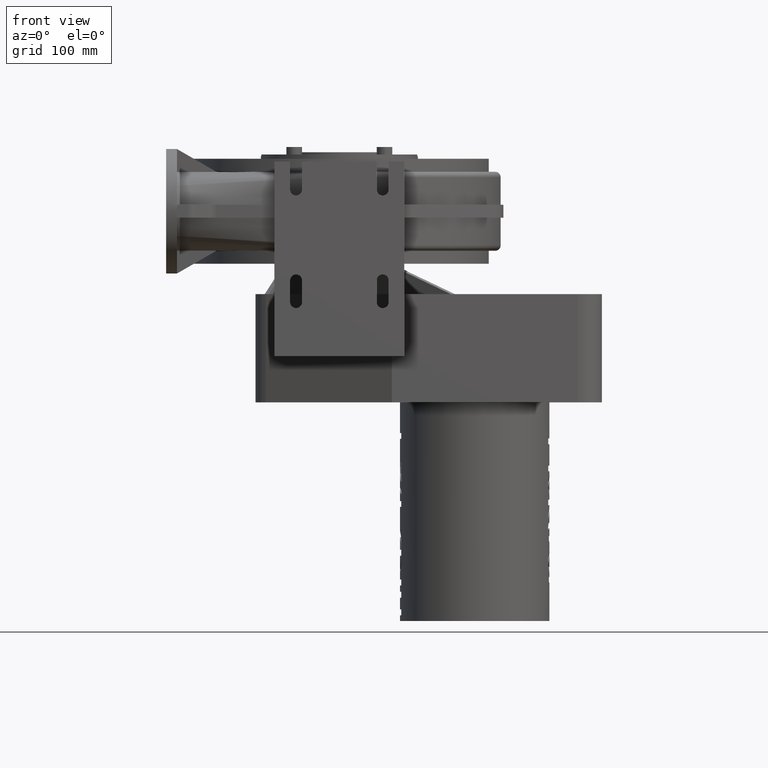
[diagram: clean part render]
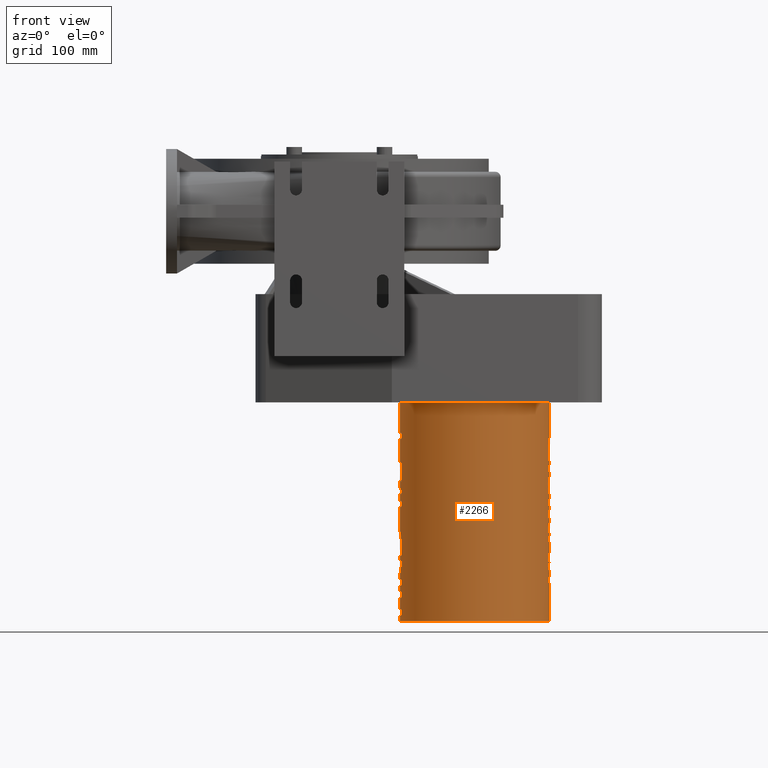
[diagram: same view with one face highlighted and labeled with its STEP entity id]
A machine part, front view. The second image highlights one B-rep face of the part: STEP entity #2266.
In plain terms, the highlighted cylindrical surface (partial cylindrical patch) has radius 69 mm, axis along (0, 0, -1).
Its self-contained STEP definition (entity closure, byte-faithful):
#1272=CARTESIAN_POINT('',(125.0,7.789082E-029,-176.500000000000000));
#1273=DIRECTION('',(0.0,7.810504E-031,-1.0));
#1274=DIRECTION('',(1.0,0.0,0.0));
#1275=AXIS2_PLACEMENT_3D('',#1272,#1273,#1274);
#1276=CYLINDRICAL_SURFACE('',#1275,69.0);
#1277=CARTESIAN_POINT('',(194.0,8.449784E-015,-176.500000000000000));
#1278=VERTEX_POINT('',#1277);
#1279=CARTESIAN_POINT('',(194.0,8.449784E-015,-209.729818759031560));
#1280=VERTEX_POINT('',#1279);
#1281=CARTESIAN_POINT('',(194.0,8.449784E-015,-176.500000000000000));
#1282=DIRECTION('',(0.0,0.0,-1.0));
#1283=VECTOR('',#1282,33.229818759031559);
#1284=LINE('',#1281,#1283);
#1285=EDGE_CURVE('',#1278,#1280,#1284,.T.);
#1286=ORIENTED_EDGE('',*,*,#1285,.F.);
#1287=CARTESIAN_POINT('',(56.0,8.449784E-015,-176.500000000000000));
#1288=VERTEX_POINT('',#1287);
#1289=CARTESIAN_POINT('',(125.0,7.789082E-029,-176.500000000000000));
#1290=DIRECTION('',(0.0,0.0,1.0));
#1291=DIRECTION('',(1.0,0.0,0.0));
#1292=AXIS2_PLACEMENT_3D('',#1289,#1290,#1291);
#1293=CIRCLE('',#1292,69.0);
#1294=EDGE_CURVE('',#1288,#1278,#1293,.T.);
#1295=ORIENTED_EDGE('',*,*,#1294,.F.);
#1296=CARTESIAN_POINT('',(56.0,-8.449784E-015,-204.775050201222260));
#1297=VERTEX_POINT('',#1296);
#1298=CARTESIAN_POINT('',(56.0,-8.449784E-015,-204.775050201222260));
#1299=DIRECTION('',(0.0,0.0,1.0));
#1300=VECTOR('',#1299,28.275050201222257);
#1301=LINE('',#1298,#1300);
#1302=EDGE_CURVE('',#1297,#1288,#1301,.T.);
#1303=ORIENTED_EDGE('',*,*,#1302,.F.);
#1304=CARTESIAN_POINT('',(57.189682534296850,-12.757775872014463,-204.775050201222230));
#1305=VERTEX_POINT('',#1304);
#1306=CARTESIAN_POINT('',(125.0,9.997506E-029,-204.775050201222230));
#1307=DIRECTION('',(0.0,0.0,1.0));
#1308=DIRECTION('',(1.0,0.0,0.0));
#1309=AXIS2_PLACEMENT_3D('',#1306,#1307,#1308);
#1310=CIRCLE('',#1309,69.0);
#1311=EDGE_CURVE('',#1297,#1305,#1310,.T.);
#1312=ORIENTED_EDGE('',*,*,#1311,.T.);
#1313=CARTESIAN_POINT('',(57.189682534296850,-12.757775872014463,-210.289150849503270));
#1314=VERTEX_POINT('',#1313);
#1315=CARTESIAN_POINT('',(57.189682534296850,-12.757775872014463,-204.775050201222230));
#1316=DIRECTION('',(0.0,0.0,-1.0));
#1317=VECTOR('',#1316,5.514100648281044);
#1318=LINE('',#1315,#1317);
#1319=EDGE_CURVE('',#1305,#1314,#1318,.T.);
#1320=ORIENTED_EDGE('',*,*,#1319,.T.);
#1321=CARTESIAN_POINT('',(56.0,-8.449784E-015,-210.289150849503240));
#1322=VERTEX_POINT('',#1321);
#1323=CARTESIAN_POINT('',(125.0,1.042819E-028,-210.289150849503270));
#1324=DIRECTION('',(0.0,0.0,-1.0));
#1325=DIRECTION('',(1.0,0.0,0.0));
#1326=AXIS2_PLACEMENT_3D('',#1323,#1324,#1325);
#1327=CIRCLE('',#1326,69.0);
#1328=EDGE_CURVE('',#1314,#1322,#1327,.T.);
#1329=ORIENTED_EDGE('',*,*,#1328,.T.);
#1330=CARTESIAN_POINT('',(55.999999999999943,-1.964088E-012,-234.516596737589420));
#1331=VERTEX_POINT('',#1330);
#1332=CARTESIAN_POINT('',(55.999999999999943,-1.964088E-012,-234.516596737589420));
#1333=DIRECTION('',(0.0,0.0,1.0));
#1334=VECTOR('',#1333,24.227445888086180);
#1335=LINE('',#1332,#1334);
#1336=EDGE_CURVE('',#1331,#1322,#1335,.T.);
#1337=ORIENTED_EDGE('',*,*,#1336,.F.);
#1338=CARTESIAN_POINT('',(56.452439273041328,-7.888720959947423,-242.104471193736170));
#1339=VERTEX_POINT('',#1338);
#1340=CARTESIAN_POINT('',(55.999999999999943,-1.964088E-012,-234.516596737589420));
#1341=CARTESIAN_POINT('',(55.999999999999957,-0.388288890931109,-234.838361301379050));
#1342=CARTESIAN_POINT('',(56.007156899123061,-1.052312633657454,-235.501855051595500));
#1343=CARTESIAN_POINT('',(56.028136739089803,-2.087358634415591,-236.538959868762560));
#1344=CARTESIAN_POINT('',(56.052822724750527,-2.804268010919069,-237.276655904869190));
#1345=CARTESIAN_POINT('',(56.188844136347242,-5.434923488413775,-239.965103715801380));
#1346=CARTESIAN_POINT('',(56.356744716586206,-7.057201065511895,-241.639798311551630));
#1347=CARTESIAN_POINT('',(56.452439273041328,-7.888720959947424,-242.104471193736170));
#1348=B_SPLINE_CURVE_WITH_KNOTS('',3,(#1340,#1341,#1342,#1343,#1344,#1345,#1346,#1347),.UNSPECIFIED.,.F.,.U.,(4,2,2,4),(0.007320652889448,0.144058107697565,0.416372723331911,1.088252867130318),.UNSPECIFIED.);
#1349=EDGE_CURVE('',#1331,#1339,#1348,.T.);
#1350=ORIENTED_EDGE('',*,*,#1349,.T.);
#1351=CARTESIAN_POINT('',(56.452439273041328,-7.888720959947424,-231.721315633388090));
#1352=VERTEX_POINT('',#1351);
#1353=CARTESIAN_POINT('',(56.452439273041328,-7.888720959947423,-242.104471193736170));
#1354=DIRECTION('',(0.0,0.0,1.0));
#1355=VECTOR('',#1354,10.383155560348087);
#1356=LINE('',#1353,#1355);
#1357=EDGE_CURVE('',#1339,#1352,#1356,.T.);
#1358=ORIENTED_EDGE('',*,*,#1357,.T.);
#1359=CARTESIAN_POINT('',(57.189682534296850,-12.757775872014463,-231.721315633388090));
#1360=VERTEX_POINT('',#1359);
#1361=CARTESIAN_POINT('',(125.0,1.210215E-028,-231.721315633388090));
#1362=DIRECTION('',(0.0,0.0,1.0));
#1363=DIRECTION('',(1.0,0.0,0.0));
#1364=AXIS2_PLACEMENT_3D('',#1361,#1362,#1363);
#1365=CIRCLE('',#1364,69.0);
#1366=EDGE_CURVE('',#1352,#1360,#1365,.T.);
#1367=ORIENTED_EDGE('',*,*,#1366,.T.);
#1368=CARTESIAN_POINT('',(57.189682534296850,-12.757775872014463,-250.053099298050770));
#1369=VERTEX_POINT('',#1368);
#1370=CARTESIAN_POINT('',(57.189682534296850,-12.757775872014463,-231.721315633388090));
#1371=DIRECTION('',(0.0,0.0,-1.0));
#1372=VECTOR('',#1371,18.331783664662680);
#1373=LINE('',#1370,#1372);
#1374=EDGE_CURVE('',#1360,#1369,#1373,.T.);
#1375=ORIENTED_EDGE('',*,*,#1374,.T.);
#1376=CARTESIAN_POINT('',(56.007265570534379,-1.001297131339776,-242.374974244406620));
#1377=VERTEX_POINT('',#1376);
#1378=CARTESIAN_POINT('',(57.189682534296850,-12.757775872014463,-250.053099298050770));
#1379=CARTESIAN_POINT('',(57.074573516836452,-12.145946733812041,-249.988208328847460));
#1380=CARTESIAN_POINT('',(56.947594826559879,-11.424911343210059,-249.790373530112390));
#1381=CARTESIAN_POINT('',(56.609508529466702,-9.255135871047388,-248.922447325269080));
#1382=CARTESIAN_POINT('',(56.404172537012975,-7.647305439453977,-248.015505662462490));
#1383=CARTESIAN_POINT('',(56.104365499779682,-4.189284222809676,-245.505963388457760));
#1384=CARTESIAN_POINT('',(56.028998201659149,-2.498748388029204,-243.994666420009450));
#1385=CARTESIAN_POINT('',(56.007265570534379,-1.001297131339776,-242.374974244406590));
#1386=B_SPLINE_CURVE_WITH_KNOTS('',3,(#1378,#1379,#1380,#1381,#1382,#1383,#1384,#1385),.UNSPECIFIED.,.F.,.U.,(4,2,2,4),(0.0,0.187780786110965,0.508175730232061,0.844360333498161),.UNSPECIFIED.);
#1387=EDGE_CURVE('',#1369,#1377,#1386,.T.);
#1388=ORIENTED_EDGE('',*,*,#1387,.T.);
#1389=CARTESIAN_POINT('',(56.0,3.936754E-010,-241.310136639798770));
#1390=VERTEX_POINT('',#1389);
#1391=CARTESIAN_POINT('',(56.007265570534379,-1.001297131339776,-242.374974244406590));
#1392=CARTESIAN_POINT('',(56.002553359331870,-0.676609957178868,-242.025627284866350));
#1393=CARTESIAN_POINT('',(55.999999999998060,-0.340148046746626,-241.667135176022040));
#1394=CARTESIAN_POINT('',(56.0,3.936754E-010,-241.310136639798770));
#1395=B_SPLINE_CURVE_WITH_KNOTS('',3,(#1391,#1392,#1393,#1394),.UNSPECIFIED.,.F.,.U.,(4,4),(0.0,0.143086874913496),.UNSPECIFIED.);
#1396=EDGE_CURVE('',#1377,#1390,#1395,.T.);
#1397=ORIENTED_EDGE('',*,*,#1396,.T.);
#1398=CARTESIAN_POINT('',(56.000000000000014,-1.538158E-014,-254.608028303446620));
#1399=VERTEX_POINT('',#1398);
#1400=CARTESIAN_POINT('',(56.000000000000014,-1.538158E-014,-254.608028303446620));
#1401=DIRECTION('',(-1.068655E-015,2.960550E-011,1.0));
#1402=VECTOR('',#1401,13.297891663647846);
#1403=LINE('',#1400,#1402);
#1404=EDGE_CURVE('',#1399,#1390,#1403,.T.);
#1405=ORIENTED_EDGE('',*,*,#1404,.F.);
#1406=CARTESIAN_POINT('',(57.277409742529869,-13.215550265456670,-257.814456059593510));
#1407=VERTEX_POINT('',#1406);
#1408=CARTESIAN_POINT('',(125.0,1.388971E-028,-254.608028303446620));
#1409=DIRECTION('',(1.000738E-016,-0.235784627761744,0.971805335090961));
#1410=DIRECTION('',(-9.787630E-065,-0.971805335090961,-0.235784627761744));
#1411=AXIS2_PLACEMENT_3D('',#1408,#1409,#1410);
#1412=ELLIPSE('',#1411,71.001874046659310,68.999999999999986);
#1413=EDGE_CURVE('',#1399,#1407,#1412,.T.);
#1414=ORIENTED_EDGE('',*,*,#1413,.T.);
#1415=CARTESIAN_POINT('',(57.277409742529869,-13.215550265456670,-261.684730476877580));
#1416=VERTEX_POINT('',#1415);
#1417=CARTESIAN_POINT('',(57.277409742529869,-13.215550265456670,-257.814456059593510));
#1418=DIRECTION('',(0.0,0.0,-1.0));
#1419=VECTOR('',#1418,3.870274417284065);
#1420=LINE('',#1417,#1419);
#1421=EDGE_CURVE('',#1407,#1416,#1420,.T.);
#1422=ORIENTED_EDGE('',*,*,#1421,.T.);
#1423=CARTESIAN_POINT('',(56.0,-2.136891E-014,-258.507540663795850));
#1424=VERTEX_POINT('',#1423);
#1425=CARTESIAN_POINT('',(125.0,1.419428E-028,-258.507540663795850));
#1426=DIRECTION('',(-1.001243E-016,0.233752603951944,-0.972296107235695));
#1427=DIRECTION('',(-9.792573E-065,-0.972296107235695,-0.233752603951944));
#1428=AXIS2_PLACEMENT_3D('',#1425,#1426,#1427);
#1429=ELLIPSE('',#1428,70.966035435616192,69.0);
#1430=EDGE_CURVE('',#1416,#1424,#1429,.T.);
#1431=ORIENTED_EDGE('',*,*,#1430,.T.);
#1432=CARTESIAN_POINT('',(56.0,-8.449784E-015,-267.781453080448730));
#1433=VERTEX_POINT('',#1432);
#1434=CARTESIAN_POINT('',(56.0,-8.449784E-015,-267.781453080448730));
#1435=DIRECTION('',(0.0,0.0,1.0));
#1436=VECTOR('',#1435,9.273912416652877);
#1437=LINE('',#1434,#1436);
#1438=EDGE_CURVE('',#1433,#1424,#1437,.T.);
#1439=ORIENTED_EDGE('',*,*,#1438,.F.);
#1440=CARTESIAN_POINT('',(57.189682534296850,-12.757775872014463,-267.781453080448730));
#1441=VERTEX_POINT('',#1440);
#1442=CARTESIAN_POINT('',(125.0,1.491862E-028,-267.781453080448730));
#1443=DIRECTION('',(0.0,0.0,1.0));
#1444=DIRECTION('',(1.0,0.0,0.0));
#1445=AXIS2_PLACEMENT_3D('',#1442,#1443,#1444);
#1446=CIRCLE('',#1445,69.0);
#1447=EDGE_CURVE('',#1433,#1441,#1446,.T.);
#1448=ORIENTED_EDGE('',*,*,#1447,.T.);
#1449=CARTESIAN_POINT('',(57.189682534296850,-12.757775872014463,-273.025050678059420));
#1450=VERTEX_POINT('',#1449);
#1451=CARTESIAN_POINT('',(57.189682534296850,-12.757775872014463,-267.781453080448730));
#1452=DIRECTION('',(0.0,0.0,-1.0));
#1453=VECTOR('',#1452,5.243597597610687);
#1454=LINE('',#1451,#1453);
#1455=EDGE_CURVE('',#1441,#1450,#1454,.T.);
#1456=ORIENTED_EDGE('',*,*,#1455,.T.);
#1457=CARTESIAN_POINT('',(56.0,-8.449784E-015,-273.025050678059420));
#1458=VERTEX_POINT('',#1457);
#1459=CARTESIAN_POINT('',(125.0,1.532818E-028,-273.025050678059420));
#1460=DIRECTION('',(0.0,0.0,-1.0));
#1461=DIRECTION('',(1.0,0.0,0.0));
#1462=AXIS2_PLACEMENT_3D('',#1459,#1460,#1461);
#1463=CIRCLE('',#1462,69.0);
#1464=EDGE_CURVE('',#1450,#1458,#1463,.T.);
#1465=ORIENTED_EDGE('',*,*,#1464,.T.);
#1466=CARTESIAN_POINT('',(56.0,-8.166184E-015,-295.296798243221820));
#1467=VERTEX_POINT('',#1466);
#1468=CARTESIAN_POINT('',(56.0,-8.166184E-015,-295.296798243221820));
#1469=DIRECTION('',(0.0,0.0,1.0));
#1470=VECTOR('',#1469,22.271747565162400);
#1471=LINE('',#1468,#1470);
#1472=EDGE_CURVE('',#1467,#1458,#1471,.T.);
#1473=ORIENTED_EDGE('',*,*,#1472,.F.);
#1474=CARTESIAN_POINT('',(56.194990347468504,-5.183690453243504,-296.121849619915850));
#1475=VERTEX_POINT('',#1474);
#1476=CARTESIAN_POINT('',(56.0,-8.166184E-015,-295.296798243221820));
#1477=CARTESIAN_POINT('',(56.0,-0.841441595791575,-295.316727153522150));
#1478=CARTESIAN_POINT('',(56.015606979618177,-1.685841296721468,-295.378725431096370));
#1479=CARTESIAN_POINT('',(56.078855832537968,-3.419894112292160,-295.627335146427750));
#1480=CARTESIAN_POINT('',(56.129974676221785,-4.320713790565493,-295.826814863444720));
#1481=CARTESIAN_POINT('',(56.194990347468504,-5.183690453243504,-296.121849619915850));
#1482=B_SPLINE_CURVE_WITH_KNOTS('',3,(#1476,#1477,#1478,#1479,#1480,#1481),.UNSPECIFIED.,.F.,.U.,(4,2,4),(0.062066374970631,0.313741228126287,0.588357270375753),.UNSPECIFIED.);
#1483=EDGE_CURVE('',#1467,#1475,#1482,.T.);
#1484=ORIENTED_EDGE('',*,*,#1483,.T.);
#1485=CARTESIAN_POINT('',(56.730114355546547,-10.011129511361254,-299.055767323340890));
#1486=VERTEX_POINT('',#1485);
#1487=CARTESIAN_POINT('',(56.194990347468504,-5.183690453243504,-296.121849619915850));
#1488=CARTESIAN_POINT('',(56.265676871154405,-6.121938403884418,-296.449908343916150));
#1489=CARTESIAN_POINT('',(56.353874215139655,-7.031118832815270,-296.860635756204030));
#1490=CARTESIAN_POINT('',(56.540739588572507,-8.657024067409601,-297.848792674361850));
#1491=CARTESIAN_POINT('',(56.636726474416477,-9.374280296885328,-298.404606890562090));
#1492=CARTESIAN_POINT('',(56.730114355546547,-10.011129511361254,-299.055767323340890));
#1493=B_SPLINE_CURVE_WITH_KNOTS('',3,(#1487,#1488,#1489,#1490,#1491,#1492),.UNSPECIFIED.,.F.,.U.,(4,2,4),(0.0,0.298937367205047,0.573710543804962),.UNSPECIFIED.);
#1494=EDGE_CURVE('',#1475,#1486,#1493,.T.);
#1495=ORIENTED_EDGE('',*,*,#1494,.T.);
#1496=CARTESIAN_POINT('',(57.082655918358597,-12.175153916724391,-302.926041740624950));
#1497=VERTEX_POINT('',#1496);
#1498=CARTESIAN_POINT('',(56.730114355546547,-10.011129511361254,-299.055767323340890));
#1499=CARTESIAN_POINT('',(56.801638404794197,-10.498880534602357,-299.558078078619020));
#1500=CARTESIAN_POINT('',(56.866591028890582,-10.906832619568913,-300.128896875500630));
#1501=CARTESIAN_POINT('',(56.986841908051474,-11.634555434950347,-301.430400195352950));
#1502=CARTESIAN_POINT('',(57.039905718762121,-11.936678080163166,-302.171942473661030));
#1503=CARTESIAN_POINT('',(57.082655918358597,-12.175153916724391,-302.926041740624950));
#1504=B_SPLINE_CURVE_WITH_KNOTS('',3,(#1498,#1499,#1500,#1501,#1502,#1503),.UNSPECIFIED.,.F.,.U.,(4,2,4),(0.0,0.211139660093850,0.448790624096161),.UNSPECIFIED.);
#1505=EDGE_CURVE('',#1486,#1497,#1504,.T.);
#1506=ORIENTED_EDGE('',*,*,#1505,.T.);
#1507=CARTESIAN_POINT('',(57.189682534296850,-12.757775872014463,-307.815904579666610));
#1508=VERTEX_POINT('',#1507);
#1509=CARTESIAN_POINT('',(57.082655918358597,-12.175153916724391,-302.926041740624950));
#1510=CARTESIAN_POINT('',(57.121611546637148,-12.392462283239292,-303.609010892528890));
#1511=CARTESIAN_POINT('',(57.146676144105832,-12.527325349758074,-304.352383894549860));
#1512=CARTESIAN_POINT('',(57.182390193369969,-12.719422623613468,-305.964628284091530));
#1513=CARTESIAN_POINT('',(57.189682534296850,-12.757775872014463,-306.909542024400880));
#1514=CARTESIAN_POINT('',(57.189682534296850,-12.757775872014463,-307.815904579666610));
#1515=B_SPLINE_CURVE_WITH_KNOTS('',3,(#1509,#1510,#1511,#1512,#1513,#1514),.UNSPECIFIED.,.F.,.U.,(4,2,4),(0.0,0.215329653467874,0.487814900528465),.UNSPECIFIED.);
#1516=EDGE_CURVE('',#1497,#1508,#1515,.T.);
#1517=ORIENTED_EDGE('',*,*,#1516,.T.);
#1518=CARTESIAN_POINT('',(57.189682534296850,-12.757775872014463,-318.199060140014750));
#1519=VERTEX_POINT('',#1518);
#1520=CARTESIAN_POINT('',(57.189682534296850,-12.757775872014463,-307.815904579666610));
#1521=DIRECTION('',(0.0,0.0,-1.0));
#1522=VECTOR('',#1521,10.383155560348143);
#1523=LINE('',#1520,#1522);
#1524=EDGE_CURVE('',#1508,#1519,#1523,.T.);
#1525=ORIENTED_EDGE('',*,*,#1524,.T.);
#1526=CARTESIAN_POINT('',(56.0,-8.449784E-015,-318.199060140014690));
#1527=VERTEX_POINT('',#1526);
#1528=CARTESIAN_POINT('',(125.0,1.885649E-028,-318.199060140014690));
#1529=DIRECTION('',(0.0,0.0,-1.0));
#1530=DIRECTION('',(1.0,0.0,0.0));
#1531=AXIS2_PLACEMENT_3D('',#1528,#1529,#1530);
#1532=CIRCLE('',#1531,69.0);
#1533=EDGE_CURVE('',#1519,#1527,#1532,.T.);
#1534=ORIENTED_EDGE('',*,*,#1533,.T.);
#1535=CARTESIAN_POINT('',(56.0,2.877470E-012,-328.400225835131550));
#1536=VERTEX_POINT('',#1535);
#1537=CARTESIAN_POINT('',(56.0,2.877470E-012,-328.400225835131550));
#1538=DIRECTION('',(0.0,-2.829010E-013,1.0));
#1539=VECTOR('',#1538,10.201165695116856);
#1540=LINE('',#1537,#1539);
#1541=EDGE_CURVE('',#1536,#1527,#1540,.T.);
#1542=ORIENTED_EDGE('',*,*,#1541,.F.);
#1543=CARTESIAN_POINT('',(56.003652852766457,-0.709986153694740,-330.558968762954070));
#1544=VERTEX_POINT('',#1543);
#1545=CARTESIAN_POINT('',(56.0,2.877470E-012,-328.400225835131550));
#1546=CARTESIAN_POINT('',(55.999999999999993,-0.094498566185801,-328.586173280746270));
#1547=CARTESIAN_POINT('',(56.000194262688389,-0.182063039149597,-328.775396793958980));
#1548=CARTESIAN_POINT('',(56.001298591348245,-0.473252744532300,-329.477491862786280));
#1549=CARTESIAN_POINT('',(56.002840506454405,-0.631042461822988,-330.012678415201610));
#1550=CARTESIAN_POINT('',(56.003652852766457,-0.709986153694739,-330.558968762954120));
#1551=B_SPLINE_CURVE_WITH_KNOTS('',3,(#1545,#1546,#1547,#1548,#1549,#1550),.UNSPECIFIED.,.F.,.U.,(4,2,4),(0.812043932708472,0.866851330643241,1.012498962828180),.UNSPECIFIED.);
#1552=EDGE_CURVE('',#1536,#1544,#1551,.T.);
#1553=ORIENTED_EDGE('',*,*,#1552,.T.);
#1554=CARTESIAN_POINT('',(56.401304435683734,-7.430946566505216,-324.462246159382970));
#1555=VERTEX_POINT('',#1554);
#1556=CARTESIAN_POINT('',(56.003652852766457,-0.709986153694739,-330.558968762954120));
#1557=CARTESIAN_POINT('',(56.008032791472360,-1.135627935387451,-329.826864898442690));
#1558=CARTESIAN_POINT('',(56.018281944403974,-1.803933486769280,-329.006183673585550));
#1559=CARTESIAN_POINT('',(56.098894421923490,-3.894528518686718,-326.934313256408810));
#1560=CARTESIAN_POINT('',(56.195892345232004,-5.534687276788008,-325.639662058227030));
#1561=CARTESIAN_POINT('',(56.401304435683734,-7.430946566505217,-324.462246159382970));
#1562=B_SPLINE_CURVE_WITH_KNOTS('',3,(#1556,#1557,#1558,#1559,#1560,#1561),.UNSPECIFIED.,.F.,.U.,(4,2,4),(0.0,0.254056993754633,0.621421496372734),.UNSPECIFIED.);
#1563=EDGE_CURVE('',#1544,#1555,#1562,.T.);
#1564=ORIENTED_EDGE('',*,*,#1563,.T.);
#1565=CARTESIAN_POINT('',(57.189682534296850,-12.757775872014463,-321.132977843439680));
#1566=VERTEX_POINT('',#1565);
#1567=CARTESIAN_POINT('',(125.0,1.970843E-028,-329.106587763448720));
#1568=DIRECTION('',(1.746490E-016,0.529998940003180,0.847998304005088));
#1569=DIRECTION('',(-8.540696E-065,-0.847998304005088,0.529998940003180));
#1570=AXIS2_PLACEMENT_3D('',#1567,#1568,#1569);
#1571=ELLIPSE('',#1570,81.368087263988215,69.000000000000014);
#1572=EDGE_CURVE('',#1555,#1566,#1571,.T.);
#1573=ORIENTED_EDGE('',*,*,#1572,.T.);
#1574=CARTESIAN_POINT('',(57.189682534296850,-12.757775872014463,-327.729090694402320));
#1575=VERTEX_POINT('',#1574);
#1576=CARTESIAN_POINT('',(57.189682534296850,-12.757775872014463,-321.132977843439680));
#1577=DIRECTION('',(0.0,0.0,-1.0));
#1578=VECTOR('',#1577,6.596112850962641);
#1579=LINE('',#1576,#1578);
#1580=EDGE_CURVE('',#1566,#1575,#1579,.T.);
#1581=ORIENTED_EDGE('',*,*,#1580,.T.);
#1582=CARTESIAN_POINT('',(56.336554733295230,-6.806708757265856,-331.703404746559610));
#1583=VERTEX_POINT('',#1582);
#1584=CARTESIAN_POINT('',(125.0,2.026630E-028,-336.249143811726640));
#1585=DIRECTION('',(-1.712722E-016,-0.555371023930425,-0.831602685047656));
#1586=DIRECTION('',(-8.375566E-065,-0.831602685047656,0.555371023930425));
#1587=AXIS2_PLACEMENT_3D('',#1584,#1585,#1586);
#1588=ELLIPSE('',#1587,82.972315073809384,69.0);
#1589=EDGE_CURVE('',#1575,#1583,#1588,.T.);
#1590=ORIENTED_EDGE('',*,*,#1589,.T.);
#1591=CARTESIAN_POINT('',(56.013306438289632,-1.355031889908745,-339.069410895584210));
#1592=VERTEX_POINT('',#1591);
#1593=CARTESIAN_POINT('',(56.336554733295230,-6.806708757265856,-331.703404746559610));
#1594=CARTESIAN_POINT('',(56.124254691846303,-4.665108051846070,-333.145135940404260));
#1595=CARTESIAN_POINT('',(56.075005603237756,-3.322827734085596,-334.284174245514630));
#1596=CARTESIAN_POINT('',(56.030885613664402,-2.100570997435448,-335.995317541907920));
#1597=CARTESIAN_POINT('',(56.023270310668558,-1.802145103961208,-336.573841938435410));
#1598=CARTESIAN_POINT('',(56.014552740542179,-1.428621125586093,-337.821166151340550));
#1599=CARTESIAN_POINT('',(56.013306438289632,-1.355031889908744,-338.439146776674140));
#1600=CARTESIAN_POINT('',(56.013306438289632,-1.355031889908744,-339.069410895584160));
#1601=B_SPLINE_CURVE_WITH_KNOTS('',3,(#1593,#1594,#1595,#1596,#1597,#1598,#1599,#1600),.UNSPECIFIED.,.F.,.U.,(4,2,2,4),(0.0,0.777116616211671,1.139240127640572,1.480827897024913),.UNSPECIFIED.);
#1602=EDGE_CURVE('',#1583,#1592,#1601,.T.);
#1603=ORIENTED_EDGE('',*,*,#1602,.T.);
#1604=CARTESIAN_POINT('',(56.013306438289632,-1.355031889908744,-340.193038952214980));
#1605=VERTEX_POINT('',#1604);
#1606=CARTESIAN_POINT('',(56.013306438289632,-1.355031889908745,-339.069410895584210));
#1607=DIRECTION('',(0.0,0.0,-1.0));
#1608=VECTOR('',#1607,1.123628056630764);
#1609=LINE('',#1606,#1608);
#1610=EDGE_CURVE('',#1592,#1605,#1609,.T.);
#1611=ORIENTED_EDGE('',*,*,#1610,.T.);
#1612=CARTESIAN_POINT('',(57.189682534296850,-12.757775872014463,-340.193038952214980));
#1613=VERTEX_POINT('',#1612);
#1614=CARTESIAN_POINT('',(125.0,2.057433E-028,-340.193038952214980));
#1615=DIRECTION('',(0.0,0.0,1.0));
#1616=DIRECTION('',(1.0,0.0,0.0));
#1617=AXIS2_PLACEMENT_3D('',#1614,#1615,#1616);
#1618=CIRCLE('',#1617,69.0);
#1619=EDGE_CURVE('',#1605,#1613,#1618,.T.);
#1620=ORIENTED_EDGE('',*,*,#1619,.T.);
#1621=CARTESIAN_POINT('',(57.189682534296850,-12.757775872014463,-345.707139600496020));
#1622=VERTEX_POINT('',#1621);
#1623=CARTESIAN_POINT('',(57.189682534296850,-12.757775872014463,-340.193038952214980));
#1624=DIRECTION('',(0.0,0.0,-1.0));
#1625=VECTOR('',#1624,5.514100648281044);
#1626=LINE('',#1623,#1625);
#1627=EDGE_CURVE('',#1613,#1622,#1626,.T.);
#1628=ORIENTED_EDGE('',*,*,#1627,.T.);
#1629=CARTESIAN_POINT('',(56.0,-8.449784E-015,-345.707139600496020));
#1630=VERTEX_POINT('',#1629);
#1631=CARTESIAN_POINT('',(125.0,2.100501E-028,-345.707139600496020));
#1632=DIRECTION('',(0.0,0.0,-1.0));
#1633=DIRECTION('',(1.0,0.0,0.0));
#1634=AXIS2_PLACEMENT_3D('',#1631,#1632,#1633);
#1635=CIRCLE('',#1634,69.0);
#1636=EDGE_CURVE('',#1622,#1630,#1635,.T.);
#1637=ORIENTED_EDGE('',*,*,#1636,.T.);
#1638=CARTESIAN_POINT('',(56.0,-8.449784E-015,-351.429319518523470));
#1639=VERTEX_POINT('',#1638);
#1640=CARTESIAN_POINT('',(56.0,-8.449784E-015,-351.429319518523470));
#1641=DIRECTION('',(0.0,0.0,1.0));
#1642=VECTOR('',#1641,5.722179918027450);
#1643=LINE('',#1640,#1642);
#1644=EDGE_CURVE('',#1639,#1630,#1643,.T.);
#1645=ORIENTED_EDGE('',*,*,#1644,.F.);
#1646=CARTESIAN_POINT('',(57.189682534296850,-12.757775872014463,-351.429319518523530));
#1647=VERTEX_POINT('',#1646);
#1648=CARTESIAN_POINT('',(125.0,2.145194E-028,-351.429319518523530));
#1649=DIRECTION('',(0.0,0.0,1.0));
#1650=DIRECTION('',(1.0,0.0,0.0));
#1651=AXIS2_PLACEMENT_3D('',#1648,#1649,#1650);
#1652=CIRCLE('',#1651,69.0);
#1653=EDGE_CURVE('',#1639,#1647,#1652,.T.);
#1654=ORIENTED_EDGE('',*,*,#1653,.T.);
#1655=CARTESIAN_POINT('',(57.189682534296850,-12.757775872014463,-356.943420166804570));
#1656=VERTEX_POINT('',#1655);
#1657=CARTESIAN_POINT('',(57.189682534296850,-12.757775872014463,-351.429319518523530));
#1658=DIRECTION('',(0.0,0.0,-1.0));
#1659=VECTOR('',#1658,5.514100648281044);
#1660=LINE('',#1657,#1659);
#1661=EDGE_CURVE('',#1647,#1656,#1660,.T.);
#1662=ORIENTED_EDGE('',*,*,#1661,.T.);
#1663=CARTESIAN_POINT('',(56.004801891613162,-0.814025788567960,-356.943420166804570));
#1664=VERTEX_POINT('',#1663);
#1665=CARTESIAN_POINT('',(125.0,2.188262E-028,-356.943420166804570));
#1666=DIRECTION('',(0.0,0.0,-1.0));
#1667=DIRECTION('',(1.0,0.0,0.0));
#1668=AXIS2_PLACEMENT_3D('',#1665,#1666,#1667);
#1669=CIRCLE('',#1668,69.0);
#1670=EDGE_CURVE('',#1656,#1664,#1669,.T.);
#1671=ORIENTED_EDGE('',*,*,#1670,.T.);
#1672=CARTESIAN_POINT('',(56.004801891613162,-0.814025788567960,-367.742734266645580));
#1673=VERTEX_POINT('',#1672);
#1674=CARTESIAN_POINT('',(56.004801891613162,-0.814025788567960,-356.943420166804570));
#1675=DIRECTION('',(0.0,0.0,-1.0));
#1676=VECTOR('',#1675,10.799314099841013);
#1677=LINE('',#1674,#1676);
#1678=EDGE_CURVE('',#1664,#1673,#1677,.T.);
#1679=ORIENTED_EDGE('',*,*,#1678,.T.);
#1680=CARTESIAN_POINT('',(57.189682534296850,-12.757775872014463,-367.742734266645580));
#1681=VERTEX_POINT('',#1680);
#1682=CARTESIAN_POINT('',(125.0,2.272610E-028,-367.742734266645580));
#1683=DIRECTION('',(0.0,0.0,1.0));
#1684=DIRECTION('',(1.0,0.0,0.0));
#1685=AXIS2_PLACEMENT_3D('',#1682,#1683,#1684);
#1686=CIRCLE('',#1685,69.0);
#1687=EDGE_CURVE('',#1673,#1681,#1686,.T.);
#1688=ORIENTED_EDGE('',*,*,#1687,.T.);
#1689=CARTESIAN_POINT('',(57.189682534296850,-12.757775872014463,-373.256834914926630));
#1690=VERTEX_POINT('',#1689);
#1691=CARTESIAN_POINT('',(57.189682534296850,-12.757775872014463,-367.742734266645580));
#1692=DIRECTION('',(0.0,0.0,-1.0));
#1693=VECTOR('',#1692,5.514100648281044);
#1694=LINE('',#1691,#1693);
#1695=EDGE_CURVE('',#1681,#1690,#1694,.T.);
#1696=ORIENTED_EDGE('',*,*,#1695,.T.);
#1697=CARTESIAN_POINT('',(56.0,-8.449784E-015,-373.256834914926690));
#1698=VERTEX_POINT('',#1697);
#1699=CARTESIAN_POINT('',(125.0,2.315678E-028,-373.256834914926630));
#1700=DIRECTION('',(0.0,0.0,-1.0));
#1701=DIRECTION('',(1.0,0.0,0.0));
#1702=AXIS2_PLACEMENT_3D('',#1699,#1700,#1701);
#1703=CIRCLE('',#1702,69.0);
#1704=EDGE_CURVE('',#1690,#1698,#1703,.T.);
#1705=ORIENTED_EDGE('',*,*,#1704,.T.);
#1706=CARTESIAN_POINT('',(56.0,8.449784E-015,-378.500000000000000));
#1707=VERTEX_POINT('',#1706);
#1708=CARTESIAN_POINT('',(56.0,8.449784E-015,-378.500000000000000));
#1709=DIRECTION('',(0.0,0.0,1.0));
#1710=VECTOR('',#1709,5.243165085073315);
#1711=LINE('',#1708,#1710);
#1712=EDGE_CURVE('',#1707,#1698,#1711,.T.);
#1713=ORIENTED_EDGE('',*,*,#1712,.F.);
#1714=CARTESIAN_POINT('',(194.0,8.449784E-015,-378.500000000000000));
#1715=VERTEX_POINT('',#1714);
#1716=CARTESIAN_POINT('',(125.0,2.356630E-028,-378.500000000000000));
#1717=DIRECTION('',(0.0,0.0,1.0));
#1718=DIRECTION('',(1.0,0.0,0.0));
#1719=AXIS2_PLACEMENT_3D('',#1716,#1717,#1718);
#1720=CIRCLE('',#1719,69.0);
#1721=EDGE_CURVE('',#1707,#1715,#1720,.T.);
#1722=ORIENTED_EDGE('',*,*,#1721,.T.);
#1723=CARTESIAN_POINT('',(194.0,-1.551142E-012,-343.696495751257200));
#1724=VERTEX_POINT('',#1723);
#1725=CARTESIAN_POINT('',(194.0,-1.551142E-012,-343.696495751257200));
#1726=DIRECTION('',(0.0,0.0,-1.0));
#1727=VECTOR('',#1726,34.803504248742797);
#1728=LINE('',#1725,#1727);
#1729=EDGE_CURVE('',#1724,#1715,#1728,.T.);
#1730=ORIENTED_EDGE('',*,*,#1729,.F.);
#1731=CARTESIAN_POINT('',(193.734433712479130,-6.047943636048139,-342.999027952051900));
#1732=VERTEX_POINT('',#1731);
#1733=CARTESIAN_POINT('',(194.0,-1.551142E-012,-343.696495751257200));
#1734=CARTESIAN_POINT('',(194.0,-0.235935605302691,-343.626549903540760));
#1735=CARTESIAN_POINT('',(193.998794953215710,-0.485247244620345,-343.561042352480740));
#1736=CARTESIAN_POINT('',(193.980153314901680,-2.204225985096357,-343.164523698585980));
#1737=CARTESIAN_POINT('',(193.915964633521330,-3.984858096564647,-342.999027952051900));
#1738=CARTESIAN_POINT('',(193.734433712479130,-6.047943636048139,-342.999027952051900));
#1739=B_SPLINE_CURVE_WITH_KNOTS('',3,(#1733,#1734,#1735,#1736,#1737,#1738),.UNSPECIFIED.,.F.,.U.,(4,2,4),(0.307126892677180,0.338421039227105,0.511677432107472),.UNSPECIFIED.);
#1740=EDGE_CURVE('',#1724,#1732,#1739,.T.);
#1741=ORIENTED_EDGE('',*,*,#1740,.T.);
#1742=CARTESIAN_POINT('',(192.930773292497860,-12.100001648068428,-342.999027952051900));
#1743=VERTEX_POINT('',#1742);
#1744=CARTESIAN_POINT('',(125.0,2.079350E-028,-342.999027952051900));
#1745=DIRECTION('',(0.0,0.0,-1.0));
#1746=DIRECTION('',(1.0,0.0,0.0));
#1747=AXIS2_PLACEMENT_3D('',#1744,#1745,#1746);
#1748=CIRCLE('',#1747,69.0);
#1749=EDGE_CURVE('',#1732,#1743,#1748,.T.);
#1750=ORIENTED_EDGE('',*,*,#1749,.T.);
#1751=CARTESIAN_POINT('',(192.930773292497860,-12.100001648068428,-337.793844951952560));
#1752=VERTEX_POINT('',#1751);
#1753=CARTESIAN_POINT('',(192.930773292497860,-12.100001648068428,-342.999027952051900));
#1754=DIRECTION('',(0.0,0.0,1.0));
#1755=VECTOR('',#1754,5.205183000099339);
#1756=LINE('',#1753,#1755);
#1757=EDGE_CURVE('',#1743,#1752,#1756,.T.);
#1758=ORIENTED_EDGE('',*,*,#1757,.T.);
#1759=CARTESIAN_POINT('',(194.0,8.449784E-015,-337.793844951952560));
#1760=VERTEX_POINT('',#1759);
#1761=CARTESIAN_POINT('',(125.0,2.038694E-028,-337.793844951952560));
#1762=DIRECTION('',(0.0,0.0,1.0));
#1763=DIRECTION('',(1.0,0.0,0.0));
#1764=AXIS2_PLACEMENT_3D('',#1761,#1762,#1763);
#1765=CIRCLE('',#1764,69.0);
#1766=EDGE_CURVE('',#1752,#1760,#1765,.T.);
#1767=ORIENTED_EDGE('',*,*,#1766,.T.);
#1768=CARTESIAN_POINT('',(194.0,-2.715113E-016,-333.532060009061810));
#1769=VERTEX_POINT('',#1768);
#1770=CARTESIAN_POINT('',(194.0,-2.715113E-016,-333.532060009061810));
#1771=DIRECTION('',(0.0,0.0,-1.0));
#1772=VECTOR('',#1771,4.261784942890756);
#1773=LINE('',#1770,#1772);
#1774=EDGE_CURVE('',#1769,#1760,#1773,.T.);
#1775=ORIENTED_EDGE('',*,*,#1774,.F.);
#1776=CARTESIAN_POINT('',(193.964062406281560,-2.226678338356135,-333.951924166164990));
#1777=VERTEX_POINT('',#1776);
#1778=CARTESIAN_POINT('',(194.0,-2.715113E-016,-333.532060009061810));
#1779=CARTESIAN_POINT('',(194.0,-0.033674642617610,-333.544061258588210));
#1780=CARTESIAN_POINT('',(193.999975346982300,-0.067398832323297,-333.555846482320530));
#1781=CARTESIAN_POINT('',(193.998925068683720,-0.783710029085969,-333.801129664185960));
#1782=CARTESIAN_POINT('',(193.987302402902230,-1.506895624499012,-333.951924166164990));
#1783=CARTESIAN_POINT('',(193.964062406281560,-2.226678338356134,-333.951924166164990));
#1784=B_SPLINE_CURVE_WITH_KNOTS('',3,(#1778,#1779,#1780,#1781,#1782,#1783),.UNSPECIFIED.,.F.,.U.,(4,2,4),(1.206102986903294,1.215657017052462,1.408751625111765),.UNSPECIFIED.);
#1785=EDGE_CURVE('',#1769,#1777,#1784,.T.);
#1786=ORIENTED_EDGE('',*,*,#1785,.T.);
#1787=CARTESIAN_POINT('',(192.852079462199810,-12.533766898076717,-323.830734999305040));
#1788=VERTEX_POINT('',#1787);
#1789=CARTESIAN_POINT('',(193.964062406281560,-2.226678338356134,-333.951924166164990));
#1790=CARTESIAN_POINT('',(193.941482177217150,-2.926026914898637,-333.951924166164990));
#1791=CARTESIAN_POINT('',(193.907727145140850,-3.628709132785694,-333.809321591272580));
#1792=CARTESIAN_POINT('',(193.801491386515150,-5.333075363046486,-333.242373636884960));
#1793=CARTESIAN_POINT('',(193.710858780338810,-6.389841338175981,-332.667648866818580));
#1794=CARTESIAN_POINT('',(193.452614100111530,-8.787145426335904,-330.911757335307020));
#1795=CARTESIAN_POINT('',(193.266876412104380,-10.077116628368563,-329.576788668372220));
#1796=CARTESIAN_POINT('',(193.042459293537040,-11.464073177205131,-327.458140478507290));
#1797=CARTESIAN_POINT('',(192.974786257859480,-11.853513169595800,-326.722745299757210));
#1798=CARTESIAN_POINT('',(192.882150267541930,-12.372374782241531,-325.281268127892080));
#1799=CARTESIAN_POINT('',(192.852079462199810,-12.533766898076717,-324.554493569601220));
#1800=CARTESIAN_POINT('',(192.852079462199810,-12.533766898076717,-323.830734999305040));
#1801=B_SPLINE_CURVE_WITH_KNOTS('',3,(#1789,#1790,#1791,#1792,#1793,#1794,#1795,#1796,#1797,#1798,#1799,#1800),.UNSPECIFIED.,.F.,.U.,(4,2,2,2,2,4),(0.0,0.209913903405888,0.538943660015475,0.998471313632733,1.214013048942311,1.406970245232132),.UNSPECIFIED.);
#1802=EDGE_CURVE('',#1777,#1788,#1801,.T.);
#1803=ORIENTED_EDGE('',*,*,#1802,.T.);
#1804=CARTESIAN_POINT('',(193.971023827689610,-1.999467969304174,-313.668234856253890));
#1805=VERTEX_POINT('',#1804);
#1806=CARTESIAN_POINT('',(192.852079462199810,-12.533766898076717,-323.830734999305040));
#1807=CARTESIAN_POINT('',(192.852079462199810,-12.533766898076717,-323.329943527037930));
#1808=CARTESIAN_POINT('',(192.869647930917320,-12.439886152667576,-322.735708264426760));
#1809=CARTESIAN_POINT('',(192.960976447994030,-11.933352815593857,-321.053160743027210));
#1810=CARTESIAN_POINT('',(193.060328364406100,-11.377544065336627,-319.909199632638090));
#1811=CARTESIAN_POINT('',(193.342921190474610,-9.555757332003388,-317.361570176262430));
#1812=CARTESIAN_POINT('',(193.524231298289180,-8.227289040974643,-316.100079747022680));
#1813=CARTESIAN_POINT('',(193.744735281607490,-5.977871546095527,-314.714484135384230));
#1814=CARTESIAN_POINT('',(193.811539357574560,-5.165616336136809,-314.326676473390820));
#1815=CARTESIAN_POINT('',(193.916351904560970,-3.496264312888276,-313.794408349855190));
#1816=CARTESIAN_POINT('',(193.950444690628330,-2.709338882165755,-313.668234856253890));
#1817=CARTESIAN_POINT('',(193.971023827689610,-1.999467969304174,-313.668234856253890));
#1818=B_SPLINE_CURVE_WITH_KNOTS('',3,(#1806,#1807,#1808,#1809,#1810,#1811,#1812,#1813,#1814,#1815,#1816,#1817),.UNSPECIFIED.,.F.,.U.,(4,2,2,2,2,4),(0.0,0.150237441680126,0.387228809609888,0.689343945067413,0.841592289898129,0.991238246500279),.UNSPECIFIED.);
#1819=EDGE_CURVE('',#1788,#1805,#1818,.T.);
#1820=ORIENTED_EDGE('',*,*,#1819,.T.);
#1821=CARTESIAN_POINT('',(194.0,1.146088E-013,-314.077149326601900));
#1822=VERTEX_POINT('',#1821);
#1823=CARTESIAN_POINT('',(193.971023827689610,-1.999467969304174,-313.668234856253890));
#1824=CARTESIAN_POINT('',(193.983796392885240,-1.558882317533871,-313.668234856253890));
#1825=CARTESIAN_POINT('',(193.994665270102190,-1.035367356780030,-313.752133907092060));
#1826=CARTESIAN_POINT('',(193.999478322197040,-0.306899337868642,-313.970523328169920));
#1827=CARTESIAN_POINT('',(194.0,-0.154779638125563,-314.020956032771720));
#1828=CARTESIAN_POINT('',(194.0,1.146088E-013,-314.077149326601900));
#1829=B_SPLINE_CURVE_WITH_KNOTS('',3,(#1823,#1824,#1825,#1826,#1827,#1828),.UNSPECIFIED.,.F.,.U.,(4,2,4),(0.0,0.132231225310358,0.166226352126270),.UNSPECIFIED.);
#1830=EDGE_CURVE('',#1805,#1822,#1829,.T.);
#1831=ORIENTED_EDGE('',*,*,#1830,.T.);
#1832=CARTESIAN_POINT('',(194.0,-1.547978E-012,-305.834986071963040));
#1833=VERTEX_POINT('',#1832);
#1834=CARTESIAN_POINT('',(194.0,-1.547978E-012,-305.834986071963040));
#1835=DIRECTION('',(0.0,2.017173E-013,-1.0));
#1836=VECTOR('',#1835,8.242163254638854);
#1837=LINE('',#1834,#1836);
#1838=EDGE_CURVE('',#1833,#1822,#1837,.T.);
#1839=ORIENTED_EDGE('',*,*,#1838,.F.);
#1840=CARTESIAN_POINT('',(193.734433712479130,-6.047943636048139,-305.137518272757750));
#1841=VERTEX_POINT('',#1840);
#1842=CARTESIAN_POINT('',(194.0,-1.547978E-012,-305.834986071963040));
#1843=CARTESIAN_POINT('',(194.0,-0.235935605303106,-305.765040224246430));
#1844=CARTESIAN_POINT('',(193.998794953215740,-0.485247244620900,-305.699532673186410));
#1845=CARTESIAN_POINT('',(193.980153314901600,-2.204225985105158,-305.303014019289720));
#1846=CARTESIAN_POINT('',(193.915964633520300,-3.984858096576448,-305.137518272757750));
#1847=CARTESIAN_POINT('',(193.734433712479130,-6.047943636048139,-305.137518272757750));
#1848=B_SPLINE_CURVE_WITH_KNOTS('',3,(#1842,#1843,#1844,#1845,#1846,#1847),.UNSPECIFIED.,.F.,.U.,(4,2,4),(0.307126892677601,0.338421039227432,0.511677432108438),.UNSPECIFIED.);
#1849=EDGE_CURVE('',#1833,#1841,#1848,.T.);
#1850=ORIENTED_EDGE('',*,*,#1849,.T.);
#1851=CARTESIAN_POINT('',(192.930773292497860,-12.100001648068428,-305.137518272757750));
#1852=VERTEX_POINT('',#1851);
#1853=CARTESIAN_POINT('',(125.0,1.783632E-028,-305.137518272757750));
#1854=DIRECTION('',(0.0,0.0,-1.0));
#1855=DIRECTION('',(1.0,0.0,0.0));
#1856=AXIS2_PLACEMENT_3D('',#1853,#1854,#1855);
#1857=CIRCLE('',#1856,69.0);
#1858=EDGE_CURVE('',#1841,#1852,#1857,.T.);
#1859=ORIENTED_EDGE('',*,*,#1858,.T.);
#1860=CARTESIAN_POINT('',(192.930773292497860,-12.100001648068428,-299.932335272658350));
#1861=VERTEX_POINT('',#1860);
#1862=CARTESIAN_POINT('',(192.930773292497860,-12.100001648068428,-305.137518272757750));
#1863=DIRECTION('',(0.0,0.0,1.0));
#1864=VECTOR('',#1863,5.205183000099396);
#1865=LINE('',#1862,#1864);
#1866=EDGE_CURVE('',#1852,#1861,#1865,.T.);
#1867=ORIENTED_EDGE('',*,*,#1866,.T.);
#1868=CARTESIAN_POINT('',(194.0,8.449784E-015,-299.932335272658290));
#1869=VERTEX_POINT('',#1868);
#1870=CARTESIAN_POINT('',(125.0,1.742977E-028,-299.932335272658350));
#1871=DIRECTION('',(0.0,0.0,1.0));
#1872=DIRECTION('',(1.0,0.0,0.0));
#1873=AXIS2_PLACEMENT_3D('',#1870,#1871,#1872);
#1874=CIRCLE('',#1873,69.0);
#1875=EDGE_CURVE('',#1861,#1869,#1874,.T.);
#1876=ORIENTED_EDGE('',*,*,#1875,.T.);
#1877=CARTESIAN_POINT('',(194.0,8.449784E-015,-292.992091272525840));
#1878=VERTEX_POINT('',#1877);
#1879=CARTESIAN_POINT('',(194.0,8.449784E-015,-292.992091272525840));
#1880=DIRECTION('',(0.0,0.0,-1.0));
#1881=VECTOR('',#1880,6.940244000132452);
#1882=LINE('',#1879,#1881);
#1883=EDGE_CURVE('',#1878,#1869,#1882,.T.);
#1884=ORIENTED_EDGE('',*,*,#1883,.F.);
#1885=CARTESIAN_POINT('',(193.853184096718910,-4.498782028875699,-292.992091272525900));
#1886=VERTEX_POINT('',#1885);
#1887=CARTESIAN_POINT('',(125.0,1.688770E-028,-292.992091272525900));
#1888=DIRECTION('',(0.0,0.0,-1.0));
#1889=DIRECTION('',(1.0,0.0,0.0));
#1890=AXIS2_PLACEMENT_3D('',#1887,#1888,#1889);
#1891=CIRCLE('',#1890,69.0);
#1892=EDGE_CURVE('',#1878,#1886,#1891,.T.);
#1893=ORIENTED_EDGE('',*,*,#1892,.T.);
#1894=CARTESIAN_POINT('',(193.509011762242300,-8.216769886089528,-294.437975439220110));
#1895=VERTEX_POINT('',#1894);
#1896=CARTESIAN_POINT('',(193.853184096718910,-4.498782028875699,-292.992091272525900));
#1897=CARTESIAN_POINT('',(193.813625662271960,-5.104217933987338,-292.992091272525900));
#1898=CARTESIAN_POINT('',(193.770211420375290,-5.646316346322363,-293.006419943585630));
#1899=CARTESIAN_POINT('',(193.682156557292730,-6.635741870636622,-293.107016530544740));
#1900=CARTESIAN_POINT('',(193.638782163959430,-7.059182095386197,-293.200150529986620));
#1901=CARTESIAN_POINT('',(193.584648145372030,-7.561338427095833,-293.438969867003150));
#1902=CARTESIAN_POINT('',(193.563129892064810,-7.753947945781486,-293.556911279518090));
#1903=CARTESIAN_POINT('',(193.532366772996400,-8.020337562201398,-293.853057898230990));
#1904=CARTESIAN_POINT('',(193.523760861675730,-8.092991522409324,-293.974011971507250));
#1905=CARTESIAN_POINT('',(193.512068547416930,-8.191401818763582,-294.209522434293720));
#1906=CARTESIAN_POINT('',(193.509011762242300,-8.216769886089530,-294.330063428948620));
#1907=CARTESIAN_POINT('',(193.509011762242300,-8.216769886089530,-294.437975439220110));
#1908=B_SPLINE_CURVE_WITH_KNOTS('',3,(#1896,#1897,#1898,#1899,#1900,#1901,#1902,#1903,#1904,#1905,#1906,#1907),.UNSPECIFIED.,.F.,.U.,(4,2,2,2,2,4),(0.0,0.182018063510416,0.382990255538585,0.482031262872963,0.546172722882240,0.614161774014080),.UNSPECIFIED.);
#1909=EDGE_CURVE('',#1886,#1895,#1908,.T.);
#1910=ORIENTED_EDGE('',*,*,#1909,.T.);
#1911=CARTESIAN_POINT('',(193.566650563883460,-7.721038171794348,-296.544835224974630));
#1912=VERTEX_POINT('',#1911);
#1913=CARTESIAN_POINT('',(193.509011762242300,-8.216769886089530,-294.437975439220110));
#1914=CARTESIAN_POINT('',(193.509011762242300,-8.216769886089530,-294.710734229876270));
#1915=CARTESIAN_POINT('',(193.515359964169930,-8.163980708566539,-295.023800475248150));
#1916=CARTESIAN_POINT('',(193.534945364048780,-7.998146985551381,-295.728593821647910));
#1917=CARTESIAN_POINT('',(193.550998094581390,-7.860039866801704,-296.156788826412420));
#1918=CARTESIAN_POINT('',(193.566650563883460,-7.721038171794348,-296.544835224974630));
#1919=B_SPLINE_CURVE_WITH_KNOTS('',3,(#1913,#1914,#1915,#1916,#1917,#1918),.UNSPECIFIED.,.F.,.U.,(4,2,4),(0.0,0.081827637196833,0.190737539514051),.UNSPECIFIED.);
#1920=EDGE_CURVE('',#1895,#1912,#1919,.T.);
#1921=ORIENTED_EDGE('',*,*,#1920,.T.);
#1922=CARTESIAN_POINT('',(192.992384334285820,-11.748858350442681,-296.978600474982900));
#1923=VERTEX_POINT('',#1922);
#1924=CARTESIAN_POINT('',(125.0,1.710024E-028,-295.713338806473760));
#1925=DIRECTION('',(-2.108440E-081,0.107073199719949,-0.994251140256692));
#1926=DIRECTION('',(-1.001370E-064,-0.994251140256692,-0.107073199719949));
#1927=AXIS2_PLACEMENT_3D('',#1924,#1925,#1926);
#1928=ELLIPSE('',#1927,69.398964915630728,69.0);
#1929=EDGE_CURVE('',#1912,#1923,#1928,.T.);
#1930=ORIENTED_EDGE('',*,*,#1929,.T.);
#1931=CARTESIAN_POINT('',(192.852079462199810,-12.533766898076717,-292.868158343952020));
#1932=VERTEX_POINT('',#1931);
#1933=CARTESIAN_POINT('',(192.992384334285820,-11.748858350442681,-296.978600474982900));
#1934=CARTESIAN_POINT('',(192.945971604079890,-12.017455698034814,-296.356585564769600));
#1935=CARTESIAN_POINT('',(192.911170756268630,-12.210226444587615,-295.708863223063530));
#1936=CARTESIAN_POINT('',(192.863190595953370,-12.474240139184584,-294.326275517675530));
#1937=CARTESIAN_POINT('',(192.852079462199810,-12.533766898076717,-293.597363069379070));
#1938=CARTESIAN_POINT('',(192.852079462199810,-12.533766898076717,-292.868158343952080));
#1939=B_SPLINE_CURVE_WITH_KNOTS('',3,(#1933,#1934,#1935,#1936,#1937,#1938),.UNSPECIFIED.,.F.,.U.,(4,2,4),(0.0,0.203735392769096,0.422501317140031),.UNSPECIFIED.);
#1940=EDGE_CURVE('',#1923,#1932,#1939,.T.);
#1941=ORIENTED_EDGE('',*,*,#1940,.T.);
#1942=CARTESIAN_POINT('',(193.434509130282240,-8.815779040862868,-287.952152177191520));
#1943=VERTEX_POINT('',#1942);
#1944=CARTESIAN_POINT('',(192.852079462199810,-12.533766898076717,-292.868158343952080));
#1945=CARTESIAN_POINT('',(192.852079462199810,-12.533766898076717,-292.524793862245870));
#1946=CARTESIAN_POINT('',(192.863969118571360,-12.469904400076492,-292.115578503033190));
#1947=CARTESIAN_POINT('',(192.923514393240650,-12.142383675291882,-290.995023802017040));
#1948=CARTESIAN_POINT('',(192.986701178246680,-11.791977001768508,-290.262643214285160));
#1949=CARTESIAN_POINT('',(193.122947197138470,-10.971744244034081,-289.181086643678950));
#1950=CARTESIAN_POINT('',(193.187078035861360,-10.570633161197867,-288.780959608544040));
#1951=CARTESIAN_POINT('',(193.285541323059390,-9.905948512582086,-288.341554408780670));
#1952=CARTESIAN_POINT('',(193.316793568554630,-9.688582031949300,-288.224810600243130));
#1953=CARTESIAN_POINT('',(193.377118966055690,-9.252766337723896,-288.049877656790270));
#1954=CARTESIAN_POINT('',(193.406029494475290,-9.036858753458141,-287.987810195352040));
#1955=CARTESIAN_POINT('',(193.434509130282240,-8.815779040862868,-287.952152177191520));
#1956=B_SPLINE_CURVE_WITH_KNOTS('',3,(#1944,#1945,#1946,#1947,#1948,#1949,#1950,#1951,#1952,#1953,#1954,#1955),.UNSPECIFIED.,.F.,.U.,(4,2,2,2,2,4),(0.0,0.103009344511846,0.264399289672744,0.375645915652243,0.425276032404183,0.470579491100270),.UNSPECIFIED.);
#1957=EDGE_CURVE('',#1932,#1943,#1956,.T.);
#1958=ORIENTED_EDGE('',*,*,#1957,.T.);
#1959=CARTESIAN_POINT('',(193.806808536761590,-5.159757647935930,-287.786908272426500));
#1960=VERTEX_POINT('',#1959);
#1961=CARTESIAN_POINT('',(193.434509130282240,-8.815779040862868,-287.952152177191520));
#1962=CARTESIAN_POINT('',(193.489202539397300,-8.391208893618614,-287.874957604965290));
#1963=CARTESIAN_POINT('',(193.562163415513710,-7.767458560202726,-287.842687494443280));
#1964=CARTESIAN_POINT('',(193.675988970570610,-6.719023678690995,-287.795299965658730));
#1965=CARTESIAN_POINT('',(193.749236446334460,-5.927497544530881,-287.786908272426500));
#1966=CARTESIAN_POINT('',(193.806808536761590,-5.159757647935930,-287.786908272426500));
#1967=B_SPLINE_CURVE_WITH_KNOTS('',3,(#1961,#1962,#1963,#1964,#1965,#1966),.UNSPECIFIED.,.F.,.U.,(4,2,4),(0.0,0.130494889869888,0.427429042598002),.UNSPECIFIED.);
#1968=EDGE_CURVE('',#1943,#1960,#1967,.T.);
#1969=ORIENTED_EDGE('',*,*,#1968,.T.);
#1970=CARTESIAN_POINT('',(194.0,8.449784E-015,-287.786908272426440));
#1971=VERTEX_POINT('',#1970);
#1972=CARTESIAN_POINT('',(125.0,1.648115E-028,-287.786908272426500));
#1973=DIRECTION('',(0.0,0.0,1.0));
#1974=DIRECTION('',(1.0,0.0,0.0));
#1975=AXIS2_PLACEMENT_3D('',#1972,#1973,#1974);
#1976=CIRCLE('',#1975,69.0);
#1977=EDGE_CURVE('',#1960,#1971,#1976,.T.);
#1978=ORIENTED_EDGE('',*,*,#1977,.T.);
#1979=CARTESIAN_POINT('',(194.0,8.449837E-015,-277.498944648886830));
#1980=VERTEX_POINT('',#1979);
#1981=CARTESIAN_POINT('',(194.0,8.449837E-015,-277.498944648886830));
#1982=DIRECTION('',(0.0,0.0,-1.0));
#1983=VECTOR('',#1982,10.287963623539611);
#1984=LINE('',#1981,#1983);
#1985=EDGE_CURVE('',#1980,#1971,#1984,.T.);
#1986=ORIENTED_EDGE('',*,*,#1985,.F.);
#1987=CARTESIAN_POINT('',(192.930773292497860,-12.100001648068428,-284.482030177125300));
#1988=VERTEX_POINT('',#1987);
#1989=CARTESIAN_POINT('',(125.0,1.567761E-028,-277.498944648886830));
#1990=DIRECTION('',(8.433758E-081,0.499846793097449,-0.866113839763686));
#1991=DIRECTION('',(-8.723148E-065,-0.866113839763686,-0.499846793097449));
#1992=AXIS2_PLACEMENT_3D('',#1989,#1990,#1991);
#1993=ELLIPSE('',#1992,79.666201868828509,69.0);
#1994=EDGE_CURVE('',#1980,#1988,#1993,.T.);
#1995=ORIENTED_EDGE('',*,*,#1994,.T.);
#1996=CARTESIAN_POINT('',(192.930773292497860,-12.100001648068428,-278.884392903208950));
#1997=VERTEX_POINT('',#1996);
#1998=CARTESIAN_POINT('',(192.930773292497860,-12.100001648068428,-284.482030177125300));
#1999=DIRECTION('',(0.0,0.0,1.0));
#2000=VECTOR('',#1999,5.597637273916348);
#2001=LINE('',#1998,#2000);
#2002=EDGE_CURVE('',#1988,#1997,#2001,.T.);
#2003=ORIENTED_EDGE('',*,*,#2002,.T.);
#2004=CARTESIAN_POINT('',(193.921991337971350,-3.280108231233392,-273.927075760257140));
#2005=VERTEX_POINT('',#2004);
#2006=CARTESIAN_POINT('',(125.0,1.525463E-028,-272.083455208744230));
#2007=DIRECTION('',(0.0,-0.489970428710124,0.871739054413428));
#2008=DIRECTION('',(-8.779803E-065,-0.871739054413428,-0.489970428710124));
#2009=AXIS2_PLACEMENT_3D('',#2006,#2007,#2008);
#2010=ELLIPSE('',#2009,79.152126603331368,69.0);
#2011=EDGE_CURVE('',#1997,#2005,#2010,.T.);
#2012=ORIENTED_EDGE('',*,*,#2011,.T.);
#2013=CARTESIAN_POINT('',(193.754047620736340,-5.820733266996179,-271.531039141163770));
#2014=VERTEX_POINT('',#2013);
#2015=CARTESIAN_POINT('',(125.0,1.564024E-028,-277.020511165322770));
#2016=DIRECTION('',(-4.216879E-081,-0.686102324883030,-0.727505051384594));
#2017=DIRECTION('',(-7.327137E-065,-0.727505051384594,0.686102324883030));
#2018=AXIS2_PLACEMENT_3D('',#2015,#2016,#2017);
#2019=ELLIPSE('',#2018,94.844702272071586,69.000000000000014);
#2020=EDGE_CURVE('',#2005,#2014,#2019,.T.);
#2021=ORIENTED_EDGE('',*,*,#2020,.T.);
#2022=CARTESIAN_POINT('',(192.930773292497860,-12.100001648068428,-271.531039141163770));
#2023=VERTEX_POINT('',#2022);
#2024=CARTESIAN_POINT('',(125.0,1.521149E-028,-271.531039141163770));
#2025=DIRECTION('',(0.0,0.0,-1.0));
#2026=DIRECTION('',(1.0,0.0,0.0));
#2027=AXIS2_PLACEMENT_3D('',#2024,#2025,#2026);
#2028=CIRCLE('',#2027,69.0);
#2029=EDGE_CURVE('',#2014,#2023,#2028,.T.);
#2030=ORIENTED_EDGE('',*,*,#2029,.T.);
#2031=CARTESIAN_POINT('',(192.930773292497860,-12.100001648068428,-266.325856141064380));
#2032=VERTEX_POINT('',#2031);
#2033=CARTESIAN_POINT('',(192.930773292497860,-12.100001648068428,-271.531039141163770));
#2034=DIRECTION('',(0.0,0.0,1.0));
#2035=VECTOR('',#2034,5.205183000099396);
#2036=LINE('',#2033,#2035);
#2037=EDGE_CURVE('',#2023,#2032,#2036,.T.);
#2038=ORIENTED_EDGE('',*,*,#2037,.T.);
#2039=CARTESIAN_POINT('',(194.0,8.449784E-015,-266.325856141064380));
#2040=VERTEX_POINT('',#2039);
#2041=CARTESIAN_POINT('',(125.0,1.480493E-028,-266.325856141064380));
#2042=DIRECTION('',(0.0,0.0,1.0));
#2043=DIRECTION('',(1.0,0.0,0.0));
#2044=AXIS2_PLACEMENT_3D('',#2041,#2042,#2043);
#2045=CIRCLE('',#2044,69.0);
#2046=EDGE_CURVE('',#2032,#2040,#2045,.T.);
#2047=ORIENTED_EDGE('',*,*,#2046,.T.);
#2048=CARTESIAN_POINT('',(194.0,1.538263E-014,-261.683702508946790));
#2049=VERTEX_POINT('',#2048);
#2050=CARTESIAN_POINT('',(194.0,1.538263E-014,-261.683702508946790));
#2051=DIRECTION('',(0.0,0.0,-1.0));
#2052=VECTOR('',#2051,4.642153632117584);
#2053=LINE('',#2050,#2052);
#2054=EDGE_CURVE('',#2049,#2040,#2053,.T.);
#2055=ORIENTED_EDGE('',*,*,#2054,.F.);
#2056=CARTESIAN_POINT('',(193.896611184482450,-3.775839945528576,-262.277380474320470));
#2057=VERTEX_POINT('',#2056);
#2058=CARTESIAN_POINT('',(194.0,1.538263E-014,-261.683702508946790));
#2059=CARTESIAN_POINT('',(194.0,-0.109741689603582,-261.719769732386170));
#2060=CARTESIAN_POINT('',(193.999738125872630,-0.219926699845200,-261.754325029227740));
#2061=CARTESIAN_POINT('',(193.993852108334410,-1.448722159017317,-262.121094994960860));
#2062=CARTESIAN_POINT('',(193.960467866656760,-2.610666350577227,-262.297539187035850));
#2063=CARTESIAN_POINT('',(193.896611184482450,-3.775839945528574,-262.277380474320470));
#2064=B_SPLINE_CURVE_WITH_KNOTS('',3,(#2058,#2059,#2060,#2061,#2062,#2063),.UNSPECIFIED.,.F.,.U.,(4,2,4),(1.194834294793959,1.226135784008585,1.542651205359046),.UNSPECIFIED.);
#2065=EDGE_CURVE('',#2049,#2057,#2064,.T.);
#2066=ORIENTED_EDGE('',*,*,#2065,.T.);
#2067=CARTESIAN_POINT('',(193.896611184482450,-3.775839945528574,-249.264422974072030));
#2068=VERTEX_POINT('',#2067);
#2069=CARTESIAN_POINT('',(193.896611184482450,-3.775839945528576,-262.277380474320470));
#2070=DIRECTION('',(0.0,0.0,1.0));
#2071=VECTOR('',#2070,13.012957500248433);
#2072=LINE('',#2069,#2071);
#2073=EDGE_CURVE('',#2057,#2068,#2072,.T.);
#2074=ORIENTED_EDGE('',*,*,#2073,.T.);
#2075=CARTESIAN_POINT('',(193.455593210921340,-8.650535136097821,-253.519453521772330));
#2076=VERTEX_POINT('',#2075);
#2077=CARTESIAN_POINT('',(193.896611184482450,-3.775839945528574,-249.264422974072030));
#2078=CARTESIAN_POINT('',(193.871354090079560,-4.236698519469170,-249.276767400159710));
#2079=CARTESIAN_POINT('',(193.841408644810000,-4.695572137244156,-249.381259443785550));
#2080=CARTESIAN_POINT('',(193.761920979117430,-5.762185417274949,-249.777654553213840));
#2081=CARTESIAN_POINT('',(193.707564888772790,-6.367527525692917,-250.144531000854270));
#2082=CARTESIAN_POINT('',(193.603395033659610,-7.405646136042023,-251.004077018682720));
#2083=CARTESIAN_POINT('',(193.553259345413580,-7.845319937468550,-251.499395510114400));
#2084=CARTESIAN_POINT('',(193.498667165022600,-8.303886418915671,-252.249179357090380));
#2085=CARTESIAN_POINT('',(193.482970130679460,-8.431537665590543,-252.507869242812660));
#2086=CARTESIAN_POINT('',(193.461993318617230,-8.600111469394387,-253.014754452467490));
#2087=CARTESIAN_POINT('',(193.455593210921340,-8.650535136097819,-253.267103285093700));
#2088=CARTESIAN_POINT('',(193.455593210921340,-8.650535136097819,-253.519453521772330));
#2089=B_SPLINE_CURVE_WITH_KNOTS('',3,(#2077,#2078,#2079,#2080,#2081,#2082,#2083,#2084,#2085,#2086,#2087,#2088),.UNSPECIFIED.,.F.,.U.,(4,2,2,2,2,4),(0.0,0.138514561603791,0.341737987256366,0.542927389338988,0.637907124804848,0.723032637365666),.UNSPECIFIED.);
#2090=EDGE_CURVE('',#2068,#2076,#2089,.T.);
#2091=ORIENTED_EDGE('',*,*,#2090,.T.);
#2092=CARTESIAN_POINT('',(193.752295797390560,-5.841388755091810,-256.824331617073540));
#2093=VERTEX_POINT('',#2092);
#2094=CARTESIAN_POINT('',(193.455593210921340,-8.650535136097819,-253.519453521772330));
#2095=CARTESIAN_POINT('',(193.455593210921340,-8.650535136097819,-253.749937930954560));
#2096=CARTESIAN_POINT('',(193.461571950867550,-8.603397288786765,-253.983120126430610));
#2097=CARTESIAN_POINT('',(193.484868403920250,-8.416424459177707,-254.551928674540310));
#2098=CARTESIAN_POINT('',(193.508620382675990,-8.223905111425507,-254.910629800901920));
#2099=CARTESIAN_POINT('',(193.568789250564610,-7.706695128009386,-255.611274208740300));
#2100=CARTESIAN_POINT('',(193.605195782368440,-7.379506946927940,-255.943282374918170));
#2101=CARTESIAN_POINT('',(193.678068259351020,-6.667038486352949,-256.480633388188890));
#2102=CARTESIAN_POINT('',(193.716236314172930,-6.265803626353094,-256.700543946288970));
#2103=CARTESIAN_POINT('',(193.752295797390560,-5.841388755091810,-256.824331617073540));
#2104=B_SPLINE_CURVE_WITH_KNOTS('',3,(#2094,#2095,#2096,#2097,#2098,#2099,#2100,#2101,#2102,#2103),.UNSPECIFIED.,.F.,.U.,(4,2,2,2,4),(0.0,0.069145322754673,0.179314388551460,0.296465091294827,0.412005713395145),.UNSPECIFIED.);
#2105=EDGE_CURVE('',#2076,#2093,#2104,.T.);
#2106=ORIENTED_EDGE('',*,*,#2105,.T.);
#2107=CARTESIAN_POINT('',(193.673068974878620,-6.708919255108370,-262.008859129077220));
#2108=VERTEX_POINT('',#2107);
#2109=CARTESIAN_POINT('',(125.0,1.133623E-028,-221.915079771167830));
#2110=DIRECTION('',(5.271099E-082,0.986287517142485,-0.165036158246950));
#2111=DIRECTION('',(-1.662177E-065,-0.165036158246950,-0.986287517142485));
#2112=AXIS2_PLACEMENT_3D('',#2109,#2110,#2111);
#2113=ELLIPSE('',#2112,418.090197523578690,69.0);
#2114=EDGE_CURVE('',#2093,#2108,#2113,.T.);
#2115=ORIENTED_EDGE('',*,*,#2114,.T.);
#2116=CARTESIAN_POINT('',(192.852079462199810,-12.533766898076717,-253.457487057485420));
#2117=VERTEX_POINT('',#2116);
#2118=CARTESIAN_POINT('',(193.673068974878620,-6.708919255108370,-262.008859129077220));
#2119=CARTESIAN_POINT('',(193.616533419708050,-7.287622013649506,-261.807571213062940));
#2120=CARTESIAN_POINT('',(193.555206882083980,-7.837593766538959,-261.481459365638270));
#2121=CARTESIAN_POINT('',(193.393535795238050,-9.167260684227509,-260.480071211233560));
#2122=CARTESIAN_POINT('',(193.280436758906490,-9.961951597770620,-259.624582355569770));
#2123=CARTESIAN_POINT('',(193.089573044875010,-11.185950558410283,-257.866079431469420));
#2124=CARTESIAN_POINT('',(193.007472387848820,-11.666335211461980,-256.978518319877820));
#2125=CARTESIAN_POINT('',(192.888239694305100,-12.341069533510847,-255.177729083096980));
#2126=CARTESIAN_POINT('',(192.852079462199810,-12.533766898076717,-254.283144631014150));
#2127=CARTESIAN_POINT('',(192.852079462199810,-12.533766898076717,-253.457487057485420));
#2128=B_SPLINE_CURVE_WITH_KNOTS('',3,(#2118,#2119,#2120,#2121,#2122,#2123,#2124,#2125,#2126,#2127),.UNSPECIFIED.,.F.,.U.,(4,2,2,2,4),(0.0,0.184593872917671,0.500281828619182,0.762124595963799,1.018895010827436),.UNSPECIFIED.);
#2129=EDGE_CURVE('',#2108,#2117,#2128,.T.);
#2130=ORIENTED_EDGE('',*,*,#2129,.T.);
#2131=CARTESIAN_POINT('',(193.385586300626670,-9.187577826584265,-245.876922926388320));
#2132=VERTEX_POINT('',#2131);
#2133=CARTESIAN_POINT('',(192.852079462199810,-12.533766898076717,-253.457487057485420));
#2134=CARTESIAN_POINT('',(192.852079462199810,-12.533766898076717,-252.016958800486980));
#2135=CARTESIAN_POINT('',(192.890603348432820,-12.335647419612993,-250.561621529916180));
#2136=CARTESIAN_POINT('',(193.031834987723930,-11.521540353074071,-248.559295321187620));
#2137=CARTESIAN_POINT('',(193.091607539582810,-11.168435385788040,-247.935766740999210));
#2138=CARTESIAN_POINT('',(193.230892453109160,-10.283277739970170,-246.797245447134570));
#2139=CARTESIAN_POINT('',(193.307653207425230,-9.767654574928258,-246.303028685974310));
#2140=CARTESIAN_POINT('',(193.385586300626670,-9.187577826584263,-245.876922926388320));
#2141=B_SPLINE_CURVE_WITH_KNOTS('',3,(#2133,#2134,#2135,#2136,#2137,#2138,#2139,#2140),.UNSPECIFIED.,.F.,.U.,(4,2,2,4),(0.0,0.432158477099530,0.649533415898969,0.866648459784097),.UNSPECIFIED.);
#2142=EDGE_CURVE('',#2117,#2132,#2141,.T.);
#2143=ORIENTED_EDGE('',*,*,#2142,.T.);
#2144=CARTESIAN_POINT('',(193.957083581749860,-2.433233219312462,-243.935307045398840));
#2145=VERTEX_POINT('',#2144);
#2146=CARTESIAN_POINT('',(193.385586300626670,-9.187577826584263,-245.876922926388320));
#2147=CARTESIAN_POINT('',(193.509202006074020,-8.267473240528927,-245.211616533394450));
#2148=CARTESIAN_POINT('',(193.626810912792220,-7.250284512628584,-244.735186572382470));
#2149=CARTESIAN_POINT('',(193.832748047209950,-4.951443428064894,-244.074312980432040));
#2150=CARTESIAN_POINT('',(193.912682451465290,-3.691547641397449,-243.935307045398840));
#2151=CARTESIAN_POINT('',(193.957083581749860,-2.433233219312463,-243.935307045398840));
#2152=B_SPLINE_CURVE_WITH_KNOTS('',3,(#2146,#2147,#2148,#2149,#2150,#2151),.UNSPECIFIED.,.F.,.U.,(4,2,4),(0.0,0.342644903599138,0.720196457168591),.UNSPECIFIED.);
#2153=EDGE_CURVE('',#2132,#2145,#2152,.T.);
#2154=ORIENTED_EDGE('',*,*,#2153,.T.);
#2155=CARTESIAN_POINT('',(194.0,1.244054E-014,-244.319724073890000));
#2156=VERTEX_POINT('',#2155);
#2157=CARTESIAN_POINT('',(193.957083581749860,-2.433233219312463,-243.935307045398840));
#2158=CARTESIAN_POINT('',(193.986099371624220,-1.610934628418670,-243.935307045398840));
#2159=CARTESIAN_POINT('',(194.0,-0.789161057399336,-244.078991399559780));
#2160=CARTESIAN_POINT('',(194.0,1.244054E-014,-244.319724073890000));
#2161=B_SPLINE_CURVE_WITH_KNOTS('',3,(#2157,#2158,#2159,#2160),.UNSPECIFIED.,.F.,.U.,(4,4),(0.0,0.246843108022719),.UNSPECIFIED.);
#2162=EDGE_CURVE('',#2145,#2156,#2161,.T.);
#2163=ORIENTED_EDGE('',*,*,#2162,.T.);
#2164=CARTESIAN_POINT('',(194.0,8.449784E-015,-240.155352723898090));
#2165=VERTEX_POINT('',#2164);
#2166=CARTESIAN_POINT('',(194.0,8.449784E-015,-240.155352723898090));
#2167=DIRECTION('',(0.0,0.0,-1.0));
#2168=VECTOR('',#2167,4.164371349991910);
#2169=LINE('',#2166,#2168);
#2170=EDGE_CURVE('',#2165,#2156,#2169,.T.);
#2171=ORIENTED_EDGE('',*,*,#2170,.F.);
#2172=CARTESIAN_POINT('',(192.930773292497860,-12.100001648068428,-240.155352723898120));
#2173=VERTEX_POINT('',#2172);
#2174=CARTESIAN_POINT('',(125.0,1.276089E-028,-240.155352723898120));
#2175=DIRECTION('',(0.0,0.0,-1.0));
#2176=DIRECTION('',(1.0,0.0,0.0));
#2177=AXIS2_PLACEMENT_3D('',#2174,#2175,#2176);
#2178=CIRCLE('',#2177,69.0);
#2179=EDGE_CURVE('',#2165,#2173,#2178,.T.);
#2180=ORIENTED_EDGE('',*,*,#2179,.T.);
#2181=CARTESIAN_POINT('',(192.930773292497860,-12.100001648068428,-234.950169723798750));
#2182=VERTEX_POINT('',#2181);
#2183=CARTESIAN_POINT('',(192.930773292497860,-12.100001648068428,-240.155352723898120));
#2184=DIRECTION('',(0.0,0.0,1.0));
#2185=VECTOR('',#2184,5.205183000099368);
#2186=LINE('',#2183,#2185);
#2187=EDGE_CURVE('',#2173,#2182,#2186,.T.);
#2188=ORIENTED_EDGE('',*,*,#2187,.T.);
#2189=CARTESIAN_POINT('',(194.0,8.449784E-015,-234.950169723798780));
#2190=VERTEX_POINT('',#2189);
#2191=CARTESIAN_POINT('',(125.0,1.235434E-028,-234.950169723798750));
#2192=DIRECTION('',(0.0,0.0,1.0));
#2193=DIRECTION('',(1.0,0.0,0.0));
#2194=AXIS2_PLACEMENT_3D('',#2191,#2192,#2193);
#2195=CIRCLE('',#2194,69.0);
#2196=EDGE_CURVE('',#2182,#2190,#2195,.T.);
#2197=ORIENTED_EDGE('',*,*,#2196,.T.);
#2198=CARTESIAN_POINT('',(194.0,8.449784E-015,-228.815489759395970));
#2199=VERTEX_POINT('',#2198);
#2200=CARTESIAN_POINT('',(194.0,8.449784E-015,-228.815489759395970));
#2201=DIRECTION('',(0.0,0.0,-1.0));
#2202=VECTOR('',#2201,6.134679964402807);
#2203=LINE('',#2200,#2202);
#2204=EDGE_CURVE('',#2199,#2190,#2203,.T.);
#2205=ORIENTED_EDGE('',*,*,#2204,.F.);
#2206=CARTESIAN_POINT('',(193.999760537320980,-0.181785016888529,-228.815489759395940));
#2207=VERTEX_POINT('',#2206);
#2208=CARTESIAN_POINT('',(125.0,1.187519E-028,-228.815489759395940));
#2209=DIRECTION('',(0.0,0.0,-1.0));
#2210=DIRECTION('',(1.0,0.0,0.0));
#2211=AXIS2_PLACEMENT_3D('',#2208,#2209,#2210);
#2212=CIRCLE('',#2211,69.0);
#2213=EDGE_CURVE('',#2199,#2207,#2212,.T.);
#2214=ORIENTED_EDGE('',*,*,#2213,.T.);
#2215=CARTESIAN_POINT('',(193.999760537320980,-0.181785016888529,-215.203523104374170));
#2216=VERTEX_POINT('',#2215);
#2217=CARTESIAN_POINT('',(193.999760537320980,-0.181785016888529,-228.815489759395940));
#2218=DIRECTION('',(0.0,0.0,1.0));
#2219=VECTOR('',#2218,13.611966655021774);
#2220=LINE('',#2217,#2219);
#2221=EDGE_CURVE('',#2207,#2216,#2220,.T.);
#2222=ORIENTED_EDGE('',*,*,#2221,.T.);
#2223=CARTESIAN_POINT('',(193.589594989850440,-7.514483290838037,-215.203523104374170));
#2224=VERTEX_POINT('',#2223);
#2225=CARTESIAN_POINT('',(125.0,1.081202E-028,-215.203523104374170));
#2226=DIRECTION('',(0.0,0.0,-1.0));
#2227=DIRECTION('',(1.0,0.0,0.0));
#2228=AXIS2_PLACEMENT_3D('',#2225,#2226,#2227);
#2229=CIRCLE('',#2228,69.0);
#2230=EDGE_CURVE('',#2216,#2224,#2229,.T.);
#2231=ORIENTED_EDGE('',*,*,#2230,.T.);
#2232=CARTESIAN_POINT('',(193.589594989850440,-7.514483290838037,-230.343995878472750));
#2233=VERTEX_POINT('',#2232);
#2234=CARTESIAN_POINT('',(193.589594989850440,-7.514483290838037,-215.203523104374170));
#2235=DIRECTION('',(0.0,0.0,-1.0));
#2236=VECTOR('',#2235,15.140472774098583);
#2237=LINE('',#2234,#2236);
#2238=EDGE_CURVE('',#2224,#2233,#2237,.T.);
#2239=ORIENTED_EDGE('',*,*,#2238,.T.);
#2240=CARTESIAN_POINT('',(192.930773292497860,-12.100001648068428,-230.343995878472750));
#2241=VERTEX_POINT('',#2240);
#2242=CARTESIAN_POINT('',(125.0,1.199457E-028,-230.343995878472750));
#2243=DIRECTION('',(0.0,0.0,-1.0));
#2244=DIRECTION('',(1.0,0.0,0.0));
#2245=AXIS2_PLACEMENT_3D('',#2242,#2243,#2244);
#2246=CIRCLE('',#2245,69.0);
#2247=EDGE_CURVE('',#2233,#2241,#2246,.T.);
#2248=ORIENTED_EDGE('',*,*,#2247,.T.);
#2249=CARTESIAN_POINT('',(192.930773292497860,-12.100001648068428,-209.729818759031590));
#2250=VERTEX_POINT('',#2249);
#2251=CARTESIAN_POINT('',(192.930773292497860,-12.100001648068428,-230.343995878472750));
#2252=DIRECTION('',(0.0,0.0,1.0));
#2253=VECTOR('',#2252,20.614177119441166);
#2254=LINE('',#2251,#2253);
#2255=EDGE_CURVE('',#2241,#2250,#2254,.T.);
#2256=ORIENTED_EDGE('',*,*,#2255,.T.);
#2257=CARTESIAN_POINT('',(125.0,1.038450E-028,-209.729818759031590));
#2258=DIRECTION('',(0.0,0.0,1.0));
#2259=DIRECTION('',(1.0,0.0,0.0));
#2260=AXIS2_PLACEMENT_3D('',#2257,#2258,#2259);
#2261=CIRCLE('',#2260,69.0);
#2262=EDGE_CURVE('',#2250,#1280,#2261,.T.);
#2263=ORIENTED_EDGE('',*,*,#2262,.T.);
#2264=EDGE_LOOP('',(#1286,#1295,#1303,#1312,#1320,#1329,#1337,#1350,#1358,#1367,#1375,#1388,#1397,#1405,#1414,#1422,#1431,#1439,#1448,#1456,#1465,#1473,#1484,#1495,#1506,#1517,#1525,#1534,#1542,#1553,#1564,#1573,#1581,#1590,#1603,#1611,#1620,#1628,#1637,#1645,#1654,#1662,#1671,#1679,#1688,#1696,#1705,#1713,#1722,#1730,#1741,#1750,#1758,#1767,#1775,#1786,#1803,#1820,#1831,#1839,#1850,#1859,#1867,#1876,#1884,#1893,#1910,#1921,#1930,#1941,#1958,#1969,#1978,#1986,#1995,#2003,#2012,#2021,#2030,#2038,#2047,#2055,#2066,#2074,#2091,#2106,#2115,#2130,#2143,#2154,#2163,#2171,#2180,#2188,#2197,#2205,#2214,#2222,#2231,#2239,#2248,#2256,#2263));
#2265=FACE_OUTER_BOUND('',#2264,.T.);
#2266=ADVANCED_FACE('',(#2265),#1276,.T.);